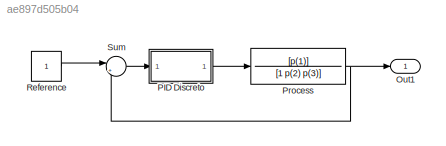
MODEL slx_ae897d505b04
KIND model
WORKSPACE source: MAT-file member
WORKSPACE p = [2.65723736536 1.93381365527 3.98280422144]
BLOCK [Outport] Out1
  IconDisplay = Port number
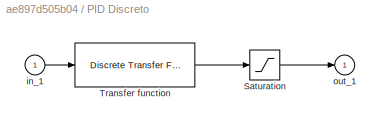
BLOCK [SubSystem] PID Discreto
  FunctionWithSeparateData = off
  MaskHideContents = off
  MinAlgLoopOccurrences = off
  Opaque = off
  Ports = [1, 1]
  PropExecContextOutsideSubsystem = off
  RTWSystemCode = Auto
  RequestExecContextInheritance = off
  ShowPortLabels = none
BLOCK [Saturate] PID Discreto/Saturation
  InputPortMap = u0
  LowerLimit = umin
  Ports = [1, 1]
  UpperLimit = umax
BLOCK [Reference] PID Discreto/Transfer function  REF=simulink_extras/Additional
Discrete/Discrete
Transfer Fcn
(with initial states)
  D = [1 -1 0]
  N = [kp*(1+T/(2*Ti)+Td/T) -kp*(1+2*Td/T-T/(2*Ti)) kp*Td/T]
  Ports = [1, 1]
  SourceBlock = simulink_extras/Additional\nDiscrete/Discrete\nTransfer Fcn\n(with initial states)
  SourceType = Discrete Transfer Function with Initial States
  TS = T
  X0 = ini
BLOCK [Inport] PID Discreto/in_1
  IconDisplay = Port number
BLOCK [Outport] PID Discreto/out_1
  IconDisplay = Port number
  InitialOutput = 0
BLOCK [TransferFcn] Process
  Denominator = [1 p(2) p(3)]
  Numerator = [p(1)]
BLOCK [Constant] Reference
BLOCK [Sum] Sum
  IconShape = round
  Inputs = |+-
  Ports = [2, 1]
LINE PID Discreto/Saturation:1 -> PID Discreto/out_1:1
LINE PID Discreto/Transfer function:1 -> PID Discreto/Saturation:1
LINE PID Discreto/in_1:1 -> PID Discreto/Transfer function:1
LINE PID Discreto:1 -> Process:1
NET Process:1 -> Out1:1, Sum:2
LINE Reference:1 -> Sum:1
LINE Sum:1 -> PID Discreto:1
note: NET lines group one-source signal fan-out (src -> all destinations, sorted); 1:1 wires keep LINE
